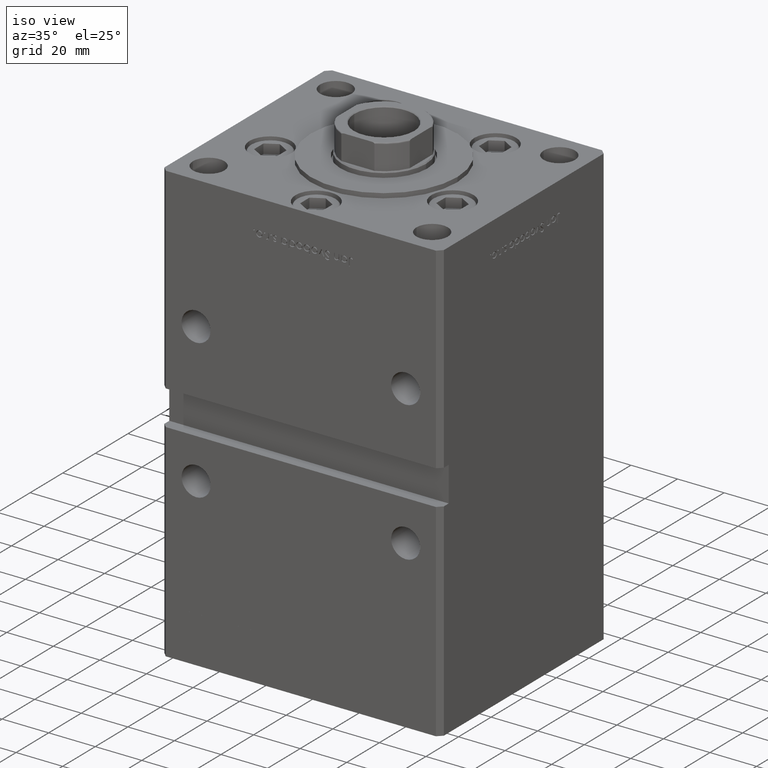
[diagram: clean part render]
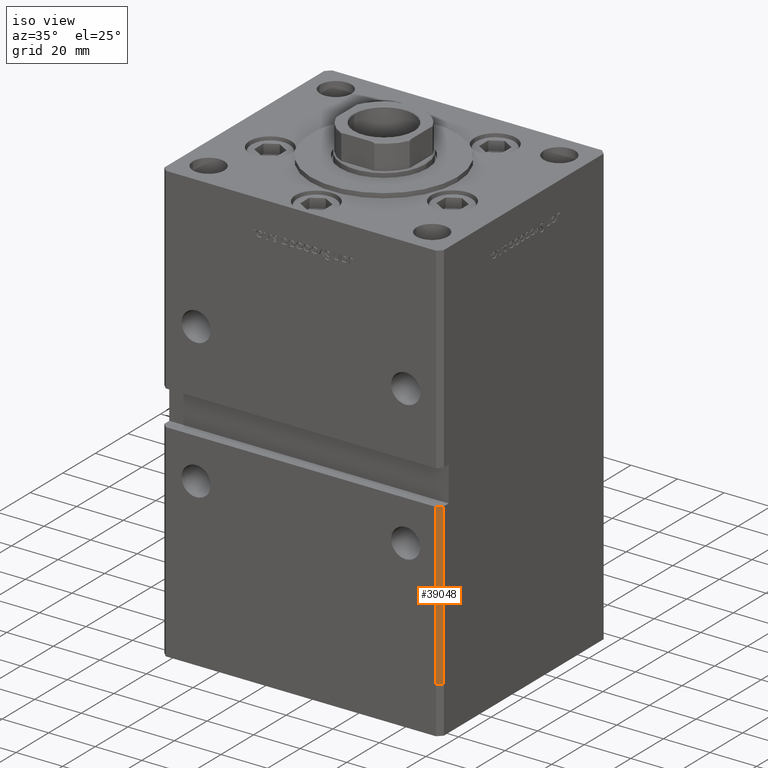
[diagram: same view with one face highlighted and labeled with its STEP entity id]
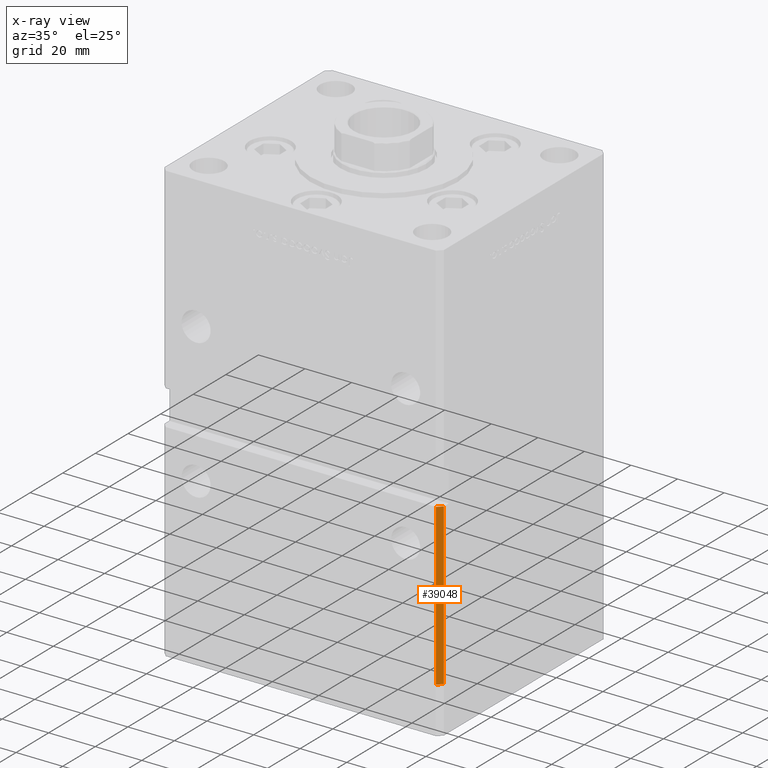
[diagram: x-ray of the same camera — body ghosted, the highlighted face saturated]
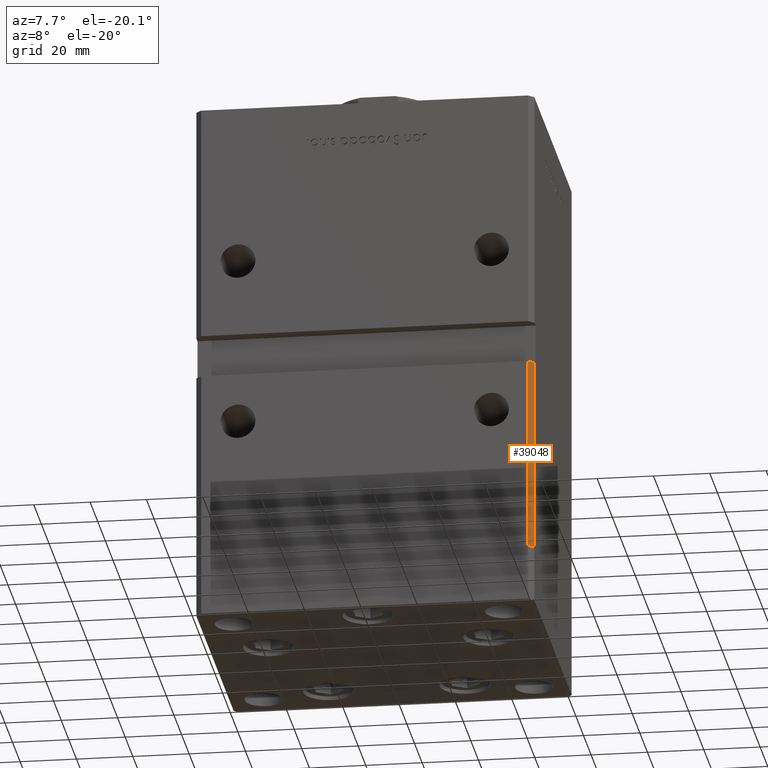
[diagram: same view with one face highlighted and labeled with its STEP entity id]
A machine part, iso view. The second image highlights one B-rep face of the part: STEP entity #39048.
The next image is the same camera in x-ray: the body ghosted, the highlighted face saturated — about 0% of this face is hidden behind the body in this view.
A second angle (auxiliary view) of the same face is appended — the face is thin or edge-on in the first view.
In plain terms, the highlighted planar face has unit normal (0.7071, -0.7071, 0).
Its self-contained STEP definition (entity closure, byte-faithful):
#132 = VECTOR ( 'NONE', #28116, 1000.000000000000000 ) ;
#892 = VERTEX_POINT ( 'NONE', #2626 ) ;
#1300 = CARTESIAN_POINT ( 'NONE',  ( 57.99999999999997868, -50.99999999999999289, 0.000000000000000000 ) ) ;
#2626 = CARTESIAN_POINT ( 'NONE',  ( 59.99999999999998579, -48.99999999999998579, 68.99999999999998579 ) ) ;
#4266 = LINE ( 'NONE', #37970, #17984 ) ;
#5451 = VECTOR ( 'NONE', #41688, 1000.000000000000114 ) ;
#5519 = EDGE_CURVE ( 'NONE', #33634, #43281, #26187, .T. ) ;
#7100 = ORIENTED_EDGE ( 'NONE', *, *, #5519, .T. ) ;
#12146 = PLANE ( 'NONE',  #16953 ) ;
#12243 = EDGE_CURVE ( 'NONE', #32400, #43281, #21829, .T. ) ;
#15312 = ORIENTED_EDGE ( 'NONE', *, *, #12243, .F. ) ;
#16953 = AXIS2_PLACEMENT_3D ( 'NONE', #20453, #36809, #51400 ) ;
#17984 = VECTOR ( 'NONE', #46831, 1000.000000000000000 ) ;
#19963 = ORIENTED_EDGE ( 'NONE', *, *, #33482, .F. ) ;
#20453 = CARTESIAN_POINT ( 'NONE',  ( 59.99999999999998579, -48.99999999999998579, 148.5000000000000000 ) ) ;
#21829 = LINE ( 'NONE', #33888, #5451 ) ;
#22305 = CARTESIAN_POINT ( 'NONE',  ( 59.99999999999998579, -48.99999999999998579, 68.99999999999998579 ) ) ;
#22312 = VECTOR ( 'NONE', #30852, 1000.000000000000114 ) ;
#26187 = LINE ( 'NONE', #45275, #132 ) ;
#26854 = LINE ( 'NONE', #22305, #22312 ) ;
#28116 = DIRECTION ( 'NONE',  ( -0.000000000000000000, -0.000000000000000000, -1.000000000000000000 ) ) ;
#30852 = DIRECTION ( 'NONE',  ( 0.7071067811865474617, 0.7071067811865474617, 0.000000000000000000 ) ) ;
#30973 = FACE_OUTER_BOUND ( 'NONE', #39144, .T. ) ;
#32400 = VERTEX_POINT ( 'NONE', #32675 ) ;
#32675 = CARTESIAN_POINT ( 'NONE',  ( 59.99999999999998579, -48.99999999999998579, 0.000000000000000000 ) ) ;
#33482 = EDGE_CURVE ( 'NONE', #892, #32400, #4266, .T. ) ;
#33634 = VERTEX_POINT ( 'NONE', #40627 ) ;
#33888 = CARTESIAN_POINT ( 'NONE',  ( 59.99999999999998579, -48.99999999999998579, 0.000000000000000000 ) ) ;
#36809 = DIRECTION ( 'NONE',  ( 0.7071067811865475727, -0.7071067811865475727, 0.000000000000000000 ) ) ;
#37970 = CARTESIAN_POINT ( 'NONE',  ( 59.99999999999998579, -48.99999999999998579, 148.5000000000000000 ) ) ;
#39048 = ADVANCED_FACE ( 'NONE', ( #30973 ), #12146, .T. ) ;
#39144 = EDGE_LOOP ( 'NONE', ( #40072, #7100, #15312, #19963 ) ) ;
#40072 = ORIENTED_EDGE ( 'NONE', *, *, #50956, .F. ) ;
#40627 = CARTESIAN_POINT ( 'NONE',  ( 57.99999999999997868, -50.99999999999999289, 68.99999999999998579 ) ) ;
#41688 = DIRECTION ( 'NONE',  ( -0.7071067811865474617, -0.7071067811865474617, 0.000000000000000000 ) ) ;
#43281 = VERTEX_POINT ( 'NONE', #1300 ) ;
#45275 = CARTESIAN_POINT ( 'NONE',  ( 57.99999999999997868, -50.99999999999999289, 148.5000000000000000 ) ) ;
#46831 = DIRECTION ( 'NONE',  ( -0.000000000000000000, -0.000000000000000000, -1.000000000000000000 ) ) ;
#50956 = EDGE_CURVE ( 'NONE', #33634, #892, #26854, .T. ) ;
#51400 = DIRECTION ( 'NONE',  ( 0.7071067811865474617, 0.7071067811865474617, 0.000000000000000000 ) ) ;